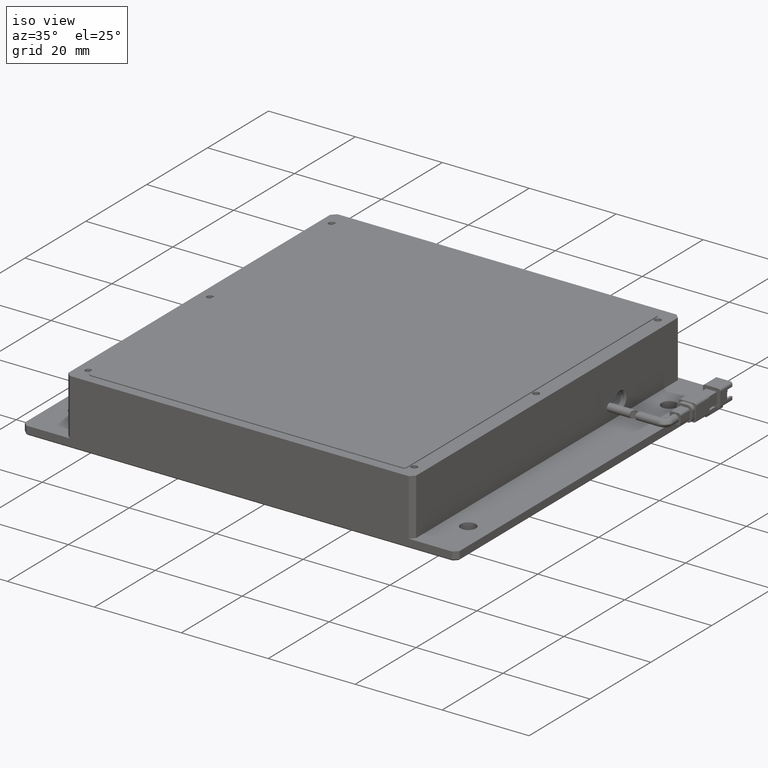
[diagram: clean part render]
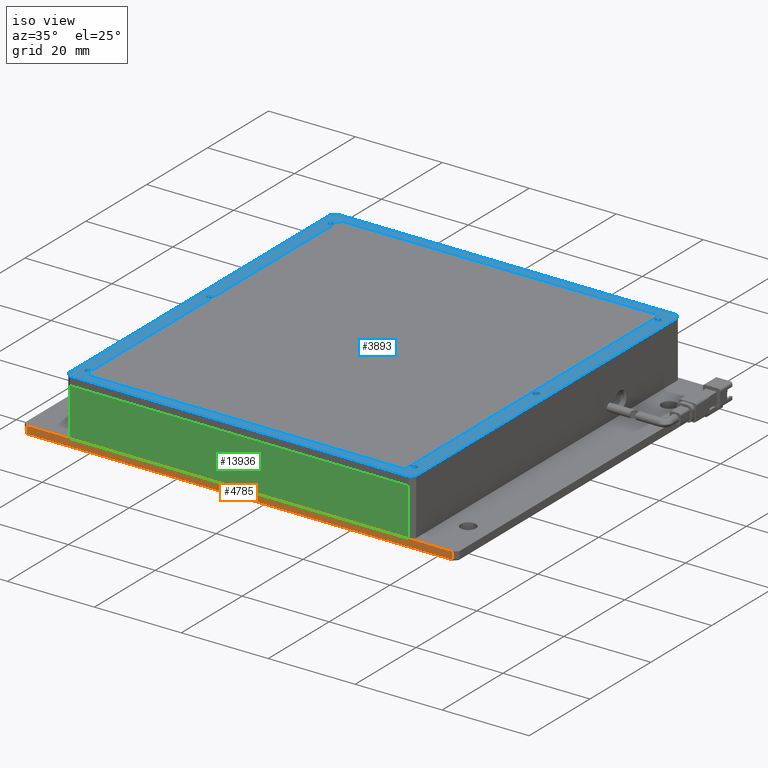
[diagram: same view with three faces highlighted in distinct colors, each labeled with its STEP entity id]
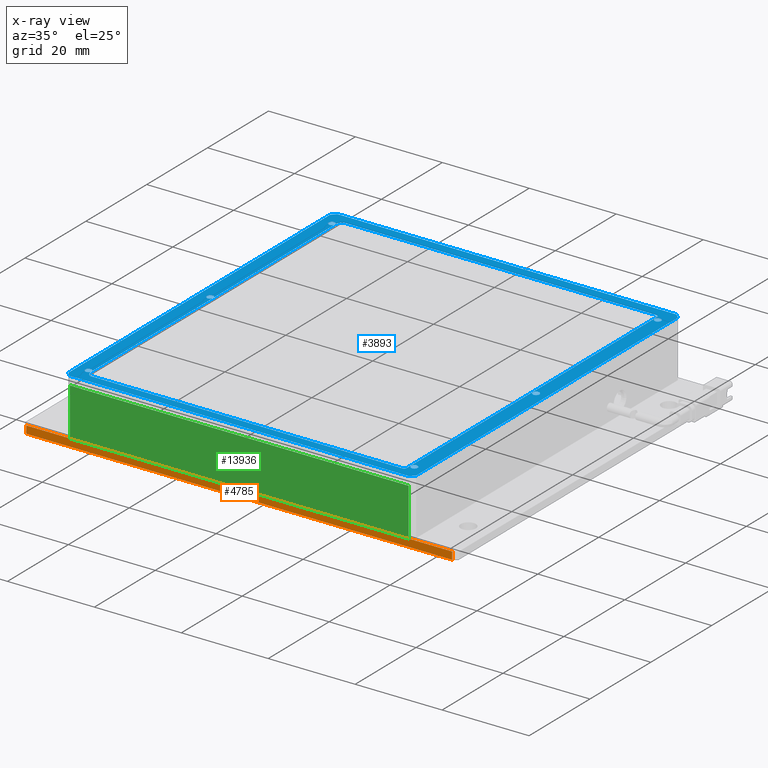
[diagram: x-ray of the same camera — body ghosted, the three highlighted faces saturated]
A machine part, iso view with three faces highlighted in distinct colors.
The next image is the same camera in x-ray (body ghosted, the three faces saturated) — at least one of them is partly hidden behind the body in this view.
Their STEP definitions:

[orange] entity #4785 — the highlighted planar face has unit normal (0, 1, 0).
#422 = ORIENTED_EDGE ( 'NONE', *, *, #15593, .T. ) ;
#1597 = CARTESIAN_POINT ( 'NONE',  ( 66.05231004200071300, -48.20007636502478500, -4.547577592273199800E-012 ) ) ;
#1853 = DIRECTION ( 'NONE',  ( -1.000000000000000000, -0.0000000000000000000, 0.0000000000000000000 ) ) ;
#2190 = VERTEX_POINT ( 'NONE', #4205 ) ;
#2260 = FACE_OUTER_BOUND ( 'NONE', #15422, .T. ) ;
#3369 = DIRECTION ( 'NONE',  ( -0.0000000000000000000, 0.0000000000000000000, -1.000000000000000000 ) ) ;
#3803 = ORIENTED_EDGE ( 'NONE', *, *, #5871, .T. ) ;
#4077 = AXIS2_PLACEMENT_3D ( 'NONE', #12299, #12276, #6858 ) ;
#4205 = CARTESIAN_POINT ( 'NONE',  ( -31.94768995799927300, -48.20007636502478500, -4.547577592273199800E-012 ) ) ;
#4785 = ADVANCED_FACE ( 'NONE', ( #2260 ), #12783, .F. ) ;
#5022 = VERTEX_POINT ( 'NONE', #5571 ) ;
#5571 = CARTESIAN_POINT ( 'NONE',  ( -31.94768995799927300, -48.20007636502478500, -1.700000000004552100 ) ) ;
#5871 = EDGE_CURVE ( 'NONE', #15740, #2190, #15045, .T. ) ;
#6098 = DIRECTION ( 'NONE',  ( -1.000000000000000000, 0.0000000000000000000, -0.0000000000000000000 ) ) ;
#6858 = DIRECTION ( 'NONE',  ( 0.0000000000000000000, -0.0000000000000000000, 1.000000000000000000 ) ) ;
#6939 = EDGE_CURVE ( 'NONE', #13370, #5022, #14749, .T. ) ;
#7468 = VECTOR ( 'NONE', #11331, 1000.000000000000000 ) ;
#7877 = EDGE_CURVE ( 'NONE', #15740, #13370, #11460, .T. ) ;
#7900 = CARTESIAN_POINT ( 'NONE',  ( 66.05231004200074100, -48.20007636502478500, -4.547577592273199800E-012 ) ) ;
#8018 = VECTOR ( 'NONE', #1853, 1000.000000000000000 ) ;
#9106 = CARTESIAN_POINT ( 'NONE',  ( 66.05231004200074100, -48.20007636502478500, -1.700000000004553000 ) ) ;
#10133 = CARTESIAN_POINT ( 'NONE',  ( -32.94768995799925900, -48.20007636502478500, -1.700000000004553000 ) ) ;
#10214 = CARTESIAN_POINT ( 'NONE',  ( -31.94768995799927300, -48.20007636502478500, -4.547577592273199800E-012 ) ) ;
#10536 = ORIENTED_EDGE ( 'NONE', *, *, #7877, .F. ) ;
#10857 = VECTOR ( 'NONE', #3369, 1000.000000000000000 ) ;
#11331 = DIRECTION ( 'NONE',  ( -0.0000000000000000000, 0.0000000000000000000, -1.000000000000000000 ) ) ;
#11446 = VECTOR ( 'NONE', #6098, 1000.000000000000000 ) ;
#11460 = LINE ( 'NONE', #1597, #7468 ) ;
#12276 = DIRECTION ( 'NONE',  ( 0.0000000000000000000, 1.000000000000000000, 0.0000000000000000000 ) ) ;
#12299 = CARTESIAN_POINT ( 'NONE',  ( -32.94768995799925900, -48.20007636502478500, -4.547577592273199800E-012 ) ) ;
#12783 = PLANE ( 'NONE',  #4077 ) ;
#13370 = VERTEX_POINT ( 'NONE', #9106 ) ;
#14434 = LINE ( 'NONE', #10214, #10857 ) ;
#14749 = LINE ( 'NONE', #10133, #8018 ) ;
#15045 = LINE ( 'NONE', #15579, #11446 ) ;
#15422 = EDGE_LOOP ( 'NONE', ( #16084, #10536, #3803, #422 ) ) ;
#15579 = CARTESIAN_POINT ( 'NONE',  ( -32.94768995799925900, -48.20007636502478500, -4.547577592273199800E-012 ) ) ;
#15593 = EDGE_CURVE ( 'NONE', #2190, #5022, #14434, .T. ) ;
#15740 = VERTEX_POINT ( 'NONE', #7900 ) ;
#16084 = ORIENTED_EDGE ( 'NONE', *, *, #6939, .F. ) ;

[blue] entity #3893 — the highlighted planar face has unit normal (0, 0, 1).
#45 = EDGE_LOOP ( 'NONE', ( #17236, #16214, #16157, #15301, #14345, #12419, #5861, #3181 ) ) ;
#67 = LINE ( 'NONE', #1229, #14272 ) ;
#81 = DIRECTION ( 'NONE',  ( 1.000000000000000000, -4.440892098500626200E-016, 0.0000000000000000000 ) ) ;
#211 = VECTOR ( 'NONE', #12949, 1000.000000000000000 ) ;
#221 = VERTEX_POINT ( 'NONE', #6420 ) ;
#334 = EDGE_CURVE ( 'NONE', #3445, #13016, #14268, .T. ) ;
#357 = CARTESIAN_POINT ( 'NONE',  ( -18.76415559455955800, -46.03789340543249900, 12.99999999999545100 ) ) ;
#534 = CARTESIAN_POINT ( 'NONE',  ( -22.94768995799926300, 39.79992363497525800, 12.99999999999545100 ) ) ;
#536 = AXIS2_PLACEMENT_3D ( 'NONE', #8205, #17638, #9549 ) ;
#568 = CARTESIAN_POINT ( 'NONE',  ( 53.80231004200072700, -4.200076365024778500, 12.99999999999545100 ) ) ;
#671 = DIRECTION ( 'NONE',  ( -1.000000000000000000, 0.0000000000000000000, 0.0000000000000000000 ) ) ;
#683 = VERTEX_POINT ( 'NONE', #7286 ) ;
#719 = CARTESIAN_POINT ( 'NONE',  ( 55.30231004200072700, -4.200076365024778500, 12.99999999999545100 ) ) ;
#728 = DIRECTION ( 'NONE',  ( 0.0000000000000000000, 0.0000000000000000000, 1.000000000000000000 ) ) ;
#732 = CIRCLE ( 'NONE', #7002, 0.6518367886739415700 ) ;
#811 = ORIENTED_EDGE ( 'NONE', *, *, #16584, .F. ) ;
#852 = AXIS2_PLACEMENT_3D ( 'NONE', #12826, #4676, #14202 ) ;
#930 = ORIENTED_EDGE ( 'NONE', *, *, #6366, .T. ) ;
#956 = CARTESIAN_POINT ( 'NONE',  ( 53.07545545019090800, 36.74185223224468900, 12.99999999999545100 ) ) ;
#962 = LINE ( 'NONE', #4984, #11548 ) ;
#1071 = AXIS2_PLACEMENT_3D ( 'NONE', #14410, #6291, #15769 ) ;
#1229 = CARTESIAN_POINT ( 'NONE',  ( -19.69768995799924800, 35.79992363497525800, 12.99999999999545100 ) ) ;
#1364 = CIRCLE ( 'NONE', #8231, 0.7500000000000006700 ) ;
#1492 = CIRCLE ( 'NONE', #7912, 0.7500000000000006700 ) ;
#1540 = EDGE_CURVE ( 'NONE', #13016, #3445, #8502, .T. ) ;
#1693 = CIRCLE ( 'NONE', #15797, 0.7500000000000006700 ) ;
#1728 = DIRECTION ( 'NONE',  ( 0.0000000000000000000, 0.0000000000000000000, -1.000000000000000000 ) ) ;
#1801 = EDGE_CURVE ( 'NONE', #10444, #6843, #1492, .T. ) ;
#1852 = CARTESIAN_POINT ( 'NONE',  ( -17.99359334202489800, 35.85280168339946300, 12.99999999999545100 ) ) ;
#1894 = DIRECTION ( 'NONE',  ( -1.000000000000000000, 0.0000000000000000000, 0.0000000000000000000 ) ) ;
#1949 = VECTOR ( 'NONE', #14095, 1000.000000000000000 ) ;
#1996 = EDGE_LOOP ( 'NONE', ( #12754, #14361 ) ) ;
#2056 = VERTEX_POINT ( 'NONE', #2931 ) ;
#2222 = AXIS2_PLACEMENT_3D ( 'NONE', #11768, #3589, #13117 ) ;
#2265 = CARTESIAN_POINT ( 'NONE',  ( 57.05231004200068400, -47.20007636502477800, 12.99999999999545100 ) ) ;
#2271 = DIRECTION ( 'NONE',  ( -1.000000000000000000, -0.0000000000000000000, -0.0000000000000000000 ) ) ;
#2375 = DIRECTION ( 'NONE',  ( 1.000000000000000000, -4.440892098500626200E-016, 0.0000000000000000000 ) ) ;
#2388 = CIRCLE ( 'NONE', #5649, 0.7500000000000006700 ) ;
#2391 = CARTESIAN_POINT ( 'NONE',  ( -19.69768995799924800, 35.79992363497525800, 12.99999999999545100 ) ) ;
#2428 = DIRECTION ( 'NONE',  ( 0.7071067811865479100, 0.7071067811865472400, 0.0000000000000000000 ) ) ;
#2493 = CARTESIAN_POINT ( 'NONE',  ( 57.05231004200074100, 39.79992363497522200, 12.99999999999545100 ) ) ;
#2593 = DIRECTION ( 'NONE',  ( 0.0000000000000000000, 0.0000000000000000000, 1.000000000000000000 ) ) ;
#2704 = CIRCLE ( 'NONE', #15367, 0.7500000000000006700 ) ;
#2751 = EDGE_CURVE ( 'NONE', #15456, #8195, #732, .T. ) ;
#2776 = AXIS2_PLACEMENT_3D ( 'NONE', #15107, #7011, #16481 ) ;
#2825 = VECTOR ( 'NONE', #3835, 1000.000000000000000 ) ;
#2931 = CARTESIAN_POINT ( 'NONE',  ( -18.76415559455955800, 37.37364854602209600, 12.99999999999545100 ) ) ;
#2984 = CARTESIAN_POINT ( 'NONE',  ( -17.72795718517141900, -44.35554108450326500, 12.99999999999545100 ) ) ;
#3005 = CARTESIAN_POINT ( 'NONE',  ( 53.67496845478625300, 36.99773376028026200, 12.99999999999545100 ) ) ;
#3093 = CARTESIAN_POINT ( 'NONE',  ( 55.30231004200074100, 35.79992363497522900, 12.99999999999545100 ) ) ;
#3181 = ORIENTED_EDGE ( 'NONE', *, *, #7914, .T. ) ;
#3210 = ORIENTED_EDGE ( 'NONE', *, *, #5722, .F. ) ;
#3278 = DIRECTION ( 'NONE',  ( -1.000000000000000000, 0.0000000000000000000, 0.0000000000000000000 ) ) ;
#3445 = VERTEX_POINT ( 'NONE', #5413 ) ;
#3583 = CARTESIAN_POINT ( 'NONE',  ( 54.55231004200070500, -44.20007636502477800, 12.99999999999545100 ) ) ;
#3589 = DIRECTION ( 'NONE',  ( 0.0000000000000000000, 0.0000000000000000000, -1.000000000000000000 ) ) ;
#3711 = ORIENTED_EDGE ( 'NONE', *, *, #14537, .T. ) ;
#3778 = DIRECTION ( 'NONE',  ( 1.000000000000000000, 0.0000000000000000000, 0.0000000000000000000 ) ) ;
#3835 = DIRECTION ( 'NONE',  ( 1.301042606982605300E-016, -1.000000000000000000, 0.0000000000000000000 ) ) ;
#3847 = CIRCLE ( 'NONE', #7307, 0.7500000000000006700 ) ;
#3893 = ADVANCED_FACE ( 'NONE', ( #16733, #6332, #9956, #10372, #13104 ), #6082, .T. ) ;
#4030 = ORIENTED_EDGE ( 'NONE', *, *, #10028, .F. ) ;
#4056 = VERTEX_POINT ( 'NONE', #12567 ) ;
#4065 = VECTOR ( 'NONE', #81, 1000.000000000000000 ) ;
#4161 = CIRCLE ( 'NONE', #2776, 0.7500000000000006700 ) ;
#4171 = CARTESIAN_POINT ( 'NONE',  ( -21.94768995799926300, 39.79992363497525800, 12.99999999999545100 ) ) ;
#4347 = DIRECTION ( 'NONE',  ( -0.7071067811865479100, -0.7071067811865472400, 0.0000000000000000000 ) ) ;
#4410 = DIRECTION ( 'NONE',  ( 1.000000000000000000, 0.0000000000000000000, 0.0000000000000000000 ) ) ;
#4504 = CARTESIAN_POINT ( 'NONE',  ( -21.94768995799933400, -48.20007636502474200, 12.99999999999545100 ) ) ;
#4616 = CARTESIAN_POINT ( 'NONE',  ( 57.05231004200074100, 38.79992363497521500, 12.99999999999545100 ) ) ;
#4629 = VERTEX_POINT ( 'NONE', #15477 ) ;
#4632 = CARTESIAN_POINT ( 'NONE',  ( -21.94768995799926300, 39.79992363497525800, 12.99999999999545300 ) ) ;
#4676 = DIRECTION ( 'NONE',  ( 0.0000000000000000000, 0.0000000000000000000, 1.000000000000000000 ) ) ;
#4709 = ORIENTED_EDGE ( 'NONE', *, *, #7501, .T. ) ;
#4752 = EDGE_CURVE ( 'NONE', #8008, #9774, #2704, .T. ) ;
#4795 = CARTESIAN_POINT ( 'NONE',  ( 55.30231004200070500, -44.20007636502477800, 12.99999999999545100 ) ) ;
#4807 = CARTESIAN_POINT ( 'NONE',  ( 57.05231004200074100, 38.79992363497522900, 12.99999999999545300 ) ) ;
#4976 = DIRECTION ( 'NONE',  ( -1.000000000000000000, 0.0000000000000000000, 0.0000000000000000000 ) ) ;
#4984 = CARTESIAN_POINT ( 'NONE',  ( 53.67496845478625300, -45.42049587066020400, 12.99999999999545100 ) ) ;
#5082 = EDGE_CURVE ( 'NONE', #11087, #4056, #8546, .T. ) ;
#5084 = CIRCLE ( 'NONE', #536, 1.975858414804687600 ) ;
#5118 = LINE ( 'NONE', #13653, #17444 ) ;
#5263 = CARTESIAN_POINT ( 'NONE',  ( 53.80231004200074100, 35.79992363497522900, 12.99999999999545100 ) ) ;
#5413 = CARTESIAN_POINT ( 'NONE',  ( -19.69768995799924100, -4.200076365024743900, 12.99999999999545100 ) ) ;
#5555 = ORIENTED_EDGE ( 'NONE', *, *, #7685, .T. ) ;
#5649 = AXIS2_PLACEMENT_3D ( 'NONE', #14920, #6809, #16293 ) ;
#5661 = CARTESIAN_POINT ( 'NONE',  ( 54.55231004200072700, -4.200076365024778500, 12.99999999999545100 ) ) ;
#5722 = EDGE_CURVE ( 'NONE', #221, #9152, #16537, .T. ) ;
#5793 = EDGE_LOOP ( 'NONE', ( #12188, #6693 ) ) ;
#5861 = ORIENTED_EDGE ( 'NONE', *, *, #13260, .T. ) ;
#5962 = CARTESIAN_POINT ( 'NONE',  ( -22.94768995799933400, -47.20007636502474200, 12.99999999999545300 ) ) ;
#6012 = DIRECTION ( 'NONE',  ( 0.0000000000000000000, 0.0000000000000000000, 1.000000000000000000 ) ) ;
#6082 = PLANE ( 'NONE',  #17326 ) ;
#6147 = DIRECTION ( 'NONE',  ( 0.0000000000000000000, 0.0000000000000000000, -1.000000000000000000 ) ) ;
#6173 = EDGE_CURVE ( 'NONE', #6843, #10444, #4161, .T. ) ;
#6188 = ORIENTED_EDGE ( 'NONE', *, *, #8144, .F. ) ;
#6291 = DIRECTION ( 'NONE',  ( 0.0000000000000000000, 0.0000000000000000000, -1.000000000000000000 ) ) ;
#6332 = FACE_BOUND ( 'NONE', #8197, .T. ) ;
#6366 = EDGE_CURVE ( 'NONE', #7288, #13438, #15430, .T. ) ;
#6420 = CARTESIAN_POINT ( 'NONE',  ( -19.70381559997610700, -44.35554108450326500, 12.99999999999545100 ) ) ;
#6451 = DIRECTION ( 'NONE',  ( 0.0000000000000000000, 1.000000000000000000, 0.0000000000000000000 ) ) ;
#6693 = ORIENTED_EDGE ( 'NONE', *, *, #12083, .T. ) ;
#6731 = ORIENTED_EDGE ( 'NONE', *, *, #334, .T. ) ;
#6809 = DIRECTION ( 'NONE',  ( 0.0000000000000000000, 0.0000000000000000000, -1.000000000000000000 ) ) ;
#6843 = VERTEX_POINT ( 'NONE', #3093 ) ;
#6952 = CARTESIAN_POINT ( 'NONE',  ( 57.05231004200069800, -48.20007636502477800, 12.99999999999545100 ) ) ;
#7002 = AXIS2_PLACEMENT_3D ( 'NONE', #956, #728, #671 ) ;
#7011 = DIRECTION ( 'NONE',  ( 0.0000000000000000000, 0.0000000000000000000, -1.000000000000000000 ) ) ;
#7040 = VERTEX_POINT ( 'NONE', #9042 ) ;
#7073 = DIRECTION ( 'NONE',  ( -1.000000000000000000, 0.0000000000000000000, 0.0000000000000000000 ) ) ;
#7087 = ORIENTED_EDGE ( 'NONE', *, *, #14582, .F. ) ;
#7286 = CARTESIAN_POINT ( 'NONE',  ( -22.94768995799931900, -47.20007636502475600, 12.99999999999545100 ) ) ;
#7288 = VERTEX_POINT ( 'NONE', #13947 ) ;
#7307 = AXIS2_PLACEMENT_3D ( 'NONE', #5661, #15163, #7073 ) ;
#7420 = CIRCLE ( 'NONE', #852, 0.6535848440912123100 ) ;
#7483 = DIRECTION ( 'NONE',  ( 4.440892098500626200E-016, 1.000000000000000000, 0.0000000000000000000 ) ) ;
#7501 = EDGE_CURVE ( 'NONE', #4629, #17756, #8118, .T. ) ;
#7565 = EDGE_CURVE ( 'NONE', #8195, #2056, #9580, .T. ) ;
#7601 = ORIENTED_EDGE ( 'NONE', *, *, #13981, .F. ) ;
#7628 = ORIENTED_EDGE ( 'NONE', *, *, #11922, .F. ) ;
#7685 = EDGE_CURVE ( 'NONE', #17756, #9478, #2388, .T. ) ;
#7740 = ORIENTED_EDGE ( 'NONE', *, *, #1540, .T. ) ;
#7912 = AXIS2_PLACEMENT_3D ( 'NONE', #15954, #15893, #15712 ) ;
#7914 = EDGE_CURVE ( 'NONE', #683, #9657, #16538, .T. ) ;
#8000 = EDGE_CURVE ( 'NONE', #16652, #10304, #14419, .T. ) ;
#8008 = VERTEX_POINT ( 'NONE', #14348 ) ;
#8118 = CIRCLE ( 'NONE', #2222, 0.7500000000000006700 ) ;
#8144 = EDGE_CURVE ( 'NONE', #3445, #9478, #10156, .T. ) ;
#8193 = ORIENTED_EDGE ( 'NONE', *, *, #1801, .T. ) ;
#8195 = VERTEX_POINT ( 'NONE', #16348 ) ;
#8197 = EDGE_LOOP ( 'NONE', ( #8193, #8968 ) ) ;
#8205 = CARTESIAN_POINT ( 'NONE',  ( -17.72795718517141900, -44.35554108450326500, 12.99999999999545100 ) ) ;
#8221 = CARTESIAN_POINT ( 'NONE',  ( -19.69768995799923800, -44.20007636502474200, 12.99999999999545100 ) ) ;
#8231 = AXIS2_PLACEMENT_3D ( 'NONE', #10036, #1728, #11401 ) ;
#8408 = CARTESIAN_POINT ( 'NONE',  ( -20.44768995799927700, -4.200076365024743900, 12.99999999999545100 ) ) ;
#8452 = EDGE_CURVE ( 'NONE', #9774, #8008, #1693, .T. ) ;
#8502 = CIRCLE ( 'NONE', #17622, 0.7500000000000006700 ) ;
#8546 = LINE ( 'NONE', #4632, #11702 ) ;
#8575 = VERTEX_POINT ( 'NONE', #2265 ) ;
#8595 = ORIENTED_EDGE ( 'NONE', *, *, #2751, .F. ) ;
#8736 = CARTESIAN_POINT ( 'NONE',  ( 56.05231004200073400, 39.79992363497522200, 12.99999999999545100 ) ) ;
#8754 = DIRECTION ( 'NONE',  ( 0.0000000000000000000, 0.0000000000000000000, -1.000000000000000000 ) ) ;
#8816 = CARTESIAN_POINT ( 'NONE',  ( 57.05231004200072700, 39.79992363497522200, 12.99999999999545100 ) ) ;
#8866 = DIRECTION ( 'NONE',  ( -4.440892098500626200E-016, -1.000000000000000000, -0.0000000000000000000 ) ) ;
#8968 = ORIENTED_EDGE ( 'NONE', *, *, #6173, .T. ) ;
#9042 = CARTESIAN_POINT ( 'NONE',  ( 53.67496845478625300, -45.42049587066020400, 12.99999999999545100 ) ) ;
#9049 = VECTOR ( 'NONE', #3778, 1000.000000000000000 ) ;
#9152 = VERTEX_POINT ( 'NONE', #357 ) ;
#9233 = EDGE_LOOP ( 'NONE', ( #17151, #3711, #930, #7087, #15787, #13222, #8595, #7601, #811, #7628, #3210, #4030, #4709, #5555, #6188, #6731, #7740 ) ) ;
#9238 = EDGE_CURVE ( 'NONE', #12315, #13369, #11159, .T. ) ;
#9337 = CARTESIAN_POINT ( 'NONE',  ( -18.76415559455955800, -46.03789340543249900, 12.99999999999545100 ) ) ;
#9478 = VERTEX_POINT ( 'NONE', #8221 ) ;
#9549 = DIRECTION ( 'NONE',  ( 1.000000000000000000, 0.0000000000000000000, 0.0000000000000000000 ) ) ;
#9580 = LINE ( 'NONE', #11878, #13125 ) ;
#9584 = EDGE_CURVE ( 'NONE', #9657, #12740, #14509, .T. ) ;
#9657 = VERTEX_POINT ( 'NONE', #4504 ) ;
#9700 = EDGE_CURVE ( 'NONE', #2056, #14403, #16610, .T. ) ;
#9774 = VERTEX_POINT ( 'NONE', #4795 ) ;
#9920 = CARTESIAN_POINT ( 'NONE',  ( -20.44768995799927700, -4.200076365024743900, 12.99999999999545100 ) ) ;
#9956 = FACE_BOUND ( 'NONE', #1996, .T. ) ;
#10028 = EDGE_CURVE ( 'NONE', #4629, #221, #5084, .T. ) ;
#10036 = CARTESIAN_POINT ( 'NONE',  ( -20.44768995799924800, 35.79992363497525800, 12.99999999999545100 ) ) ;
#10082 = DIRECTION ( 'NONE',  ( 0.0000000000000000000, 0.0000000000000000000, -1.000000000000000000 ) ) ;
#10156 = LINE ( 'NONE', #2391, #2825 ) ;
#10202 = VECTOR ( 'NONE', #2428, 1000.000000000000000 ) ;
#10304 = VERTEX_POINT ( 'NONE', #8736 ) ;
#10372 = FACE_OUTER_BOUND ( 'NONE', #45, .T. ) ;
#10417 = CARTESIAN_POINT ( 'NONE',  ( -19.69768995799924800, 35.79992363497520800, 12.99999999999545100 ) ) ;
#10444 = VERTEX_POINT ( 'NONE', #5263 ) ;
#10683 = CIRCLE ( 'NONE', #16363, 1.704916820428607800 ) ;
#10992 = DIRECTION ( 'NONE',  ( -1.000000000000000000, 4.440892098500626200E-016, -0.0000000000000000000 ) ) ;
#11087 = VERTEX_POINT ( 'NONE', #4171 ) ;
#11159 = CIRCLE ( 'NONE', #1071, 0.7500000000000006700 ) ;
#11401 = DIRECTION ( 'NONE',  ( -1.000000000000000000, 0.0000000000000000000, 0.0000000000000000000 ) ) ;
#11454 = VECTOR ( 'NONE', #8866, 1000.000000000000000 ) ;
#11508 = DIRECTION ( 'NONE',  ( 0.0000000000000000000, 0.0000000000000000000, 1.000000000000000000 ) ) ;
#11548 = VECTOR ( 'NONE', #6451, 1000.000000000000000 ) ;
#11621 = CARTESIAN_POINT ( 'NONE',  ( -21.19768995799929100, -44.20007636502474200, 12.99999999999545100 ) ) ;
#11637 = CARTESIAN_POINT ( 'NONE',  ( 53.23584440544043900, -46.03789340543249900, 12.99999999999545100 ) ) ;
#11641 = AXIS2_PLACEMENT_3D ( 'NONE', #14277, #6147, #15631 ) ;
#11702 = VECTOR ( 'NONE', #4347, 1000.000000000000000 ) ;
#11768 = CARTESIAN_POINT ( 'NONE',  ( -20.44768995799928700, -44.20007636502474200, 12.99999999999545100 ) ) ;
#11857 = LINE ( 'NONE', #534, #11454 ) ;
#11878 = CARTESIAN_POINT ( 'NONE',  ( -18.76415559455955800, 37.37364854602209600, 12.99999999999545100 ) ) ;
#11922 = EDGE_CURVE ( 'NONE', #9152, #15603, #13027, .T. ) ;
#12079 = AXIS2_PLACEMENT_3D ( 'NONE', #2984, #12563, #4410 ) ;
#12083 = EDGE_CURVE ( 'NONE', #13369, #12315, #3847, .T. ) ;
#12188 = ORIENTED_EDGE ( 'NONE', *, *, #9238, .T. ) ;
#12242 = DIRECTION ( 'NONE',  ( 1.301042606982605300E-016, -1.000000000000000000, 0.0000000000000000000 ) ) ;
#12315 = VERTEX_POINT ( 'NONE', #568 ) ;
#12419 = ORIENTED_EDGE ( 'NONE', *, *, #5082, .T. ) ;
#12479 = EDGE_CURVE ( 'NONE', #13975, #3445, #67, .T. ) ;
#12507 = EDGE_CURVE ( 'NONE', #10304, #11087, #5118, .T. ) ;
#12563 = DIRECTION ( 'NONE',  ( 0.0000000000000000000, 0.0000000000000000000, 1.000000000000000000 ) ) ;
#12567 = CARTESIAN_POINT ( 'NONE',  ( -22.94768995799926300, 38.79992363497525800, 12.99999999999545100 ) ) ;
#12740 = VERTEX_POINT ( 'NONE', #16808 ) ;
#12754 = ORIENTED_EDGE ( 'NONE', *, *, #4752, .T. ) ;
#12826 = CARTESIAN_POINT ( 'NONE',  ( 53.02138361069504000, -45.42049587066020400, 12.99999999999545100 ) ) ;
#12859 = LINE ( 'NONE', #8816, #15633 ) ;
#12885 = DIRECTION ( 'NONE',  ( -1.000000000000000000, 0.0000000000000000000, 0.0000000000000000000 ) ) ;
#12924 = EDGE_CURVE ( 'NONE', #12740, #8575, #13784, .T. ) ;
#12949 = DIRECTION ( 'NONE',  ( -0.7071067811865472400, 0.7071067811865479100, 0.0000000000000000000 ) ) ;
#12961 = DIRECTION ( 'NONE',  ( 0.0000000000000000000, 0.0000000000000000000, -1.000000000000000000 ) ) ;
#13008 = CARTESIAN_POINT ( 'NONE',  ( 54.55231004200070500, -44.20007636502477800, 12.99999999999545100 ) ) ;
#13016 = VERTEX_POINT ( 'NONE', #14967 ) ;
#13027 = LINE ( 'NONE', #9337, #9049 ) ;
#13104 = FACE_BOUND ( 'NONE', #5793, .T. ) ;
#13111 = DIRECTION ( 'NONE',  ( 0.0000000000000000000, 0.0000000000000000000, -1.000000000000000000 ) ) ;
#13117 = DIRECTION ( 'NONE',  ( -1.000000000000000000, 0.0000000000000000000, 0.0000000000000000000 ) ) ;
#13125 = VECTOR ( 'NONE', #2271, 1000.000000000000000 ) ;
#13222 = ORIENTED_EDGE ( 'NONE', *, *, #7565, .F. ) ;
#13260 = EDGE_CURVE ( 'NONE', #4056, #683, #11857, .T. ) ;
#13369 = VERTEX_POINT ( 'NONE', #719 ) ;
#13438 = VERTEX_POINT ( 'NONE', #16010 ) ;
#13653 = CARTESIAN_POINT ( 'NONE',  ( 57.05231004200074100, 39.79992363497522200, 12.99999999999545100 ) ) ;
#13784 = LINE ( 'NONE', #16089, #10202 ) ;
#13932 = AXIS2_PLACEMENT_3D ( 'NONE', #8408, #8754, #1894 ) ;
#13947 = CARTESIAN_POINT ( 'NONE',  ( -21.19768995799924800, 35.79992363497525800, 12.99999999999545100 ) ) ;
#13975 = VERTEX_POINT ( 'NONE', #10417 ) ;
#13981 = EDGE_CURVE ( 'NONE', #7040, #15456, #962, .T. ) ;
#14095 = DIRECTION ( 'NONE',  ( 0.7071067811865472400, -0.7071067811865479100, -0.0000000000000000000 ) ) ;
#14137 = CARTESIAN_POINT ( 'NONE',  ( -17.99359334202489800, 35.85280168339946300, 12.99999999999545100 ) ) ;
#14202 = DIRECTION ( 'NONE',  ( -1.000000000000000000, 0.0000000000000000000, 0.0000000000000000000 ) ) ;
#14268 = CIRCLE ( 'NONE', #13932, 0.7500000000000006700 ) ;
#14272 = VECTOR ( 'NONE', #12242, 1000.000000000000000 ) ;
#14277 = CARTESIAN_POINT ( 'NONE',  ( -20.44768995799924800, 35.79992363497525800, 12.99999999999545100 ) ) ;
#14345 = ORIENTED_EDGE ( 'NONE', *, *, #12507, .T. ) ;
#14348 = CARTESIAN_POINT ( 'NONE',  ( 53.80231004200070500, -44.20007636502477800, 12.99999999999545100 ) ) ;
#14361 = ORIENTED_EDGE ( 'NONE', *, *, #8452, .T. ) ;
#14403 = VERTEX_POINT ( 'NONE', #16437 ) ;
#14410 = CARTESIAN_POINT ( 'NONE',  ( 54.55231004200072700, -4.200076365024778500, 12.99999999999545100 ) ) ;
#14419 = LINE ( 'NONE', #4807, #211 ) ;
#14509 = LINE ( 'NONE', #6952, #4065 ) ;
#14537 = EDGE_CURVE ( 'NONE', #13975, #7288, #1364, .T. ) ;
#14582 = EDGE_CURVE ( 'NONE', #14403, #13438, #10683, .T. ) ;
#14920 = CARTESIAN_POINT ( 'NONE',  ( -20.44768995799928700, -44.20007636502474200, 12.99999999999545100 ) ) ;
#14967 = CARTESIAN_POINT ( 'NONE',  ( -21.19768995799927700, -4.200076365024743900, 12.99999999999545100 ) ) ;
#15107 = CARTESIAN_POINT ( 'NONE',  ( 54.55231004200074100, 35.79992363497522900, 12.99999999999545100 ) ) ;
#15127 = AXIS2_PLACEMENT_3D ( 'NONE', #14137, #6012, #15503 ) ;
#15163 = DIRECTION ( 'NONE',  ( 0.0000000000000000000, 0.0000000000000000000, -1.000000000000000000 ) ) ;
#15301 = ORIENTED_EDGE ( 'NONE', *, *, #8000, .T. ) ;
#15367 = AXIS2_PLACEMENT_3D ( 'NONE', #13008, #12961, #12885 ) ;
#15430 = CIRCLE ( 'NONE', #11641, 0.7500000000000006700 ) ;
#15456 = VERTEX_POINT ( 'NONE', #3005 ) ;
#15477 = CARTESIAN_POINT ( 'NONE',  ( -19.70257519632305300, -44.28553976030114100, 12.99999999999545100 ) ) ;
#15503 = DIRECTION ( 'NONE',  ( -1.000000000000000000, 0.0000000000000000000, 0.0000000000000000000 ) ) ;
#15603 = VERTEX_POINT ( 'NONE', #11637 ) ;
#15631 = DIRECTION ( 'NONE',  ( -1.000000000000000000, 0.0000000000000000000, 0.0000000000000000000 ) ) ;
#15633 = VECTOR ( 'NONE', #7483, 1000.000000000000000 ) ;
#15712 = DIRECTION ( 'NONE',  ( -1.000000000000000000, 0.0000000000000000000, 0.0000000000000000000 ) ) ;
#15769 = DIRECTION ( 'NONE',  ( -1.000000000000000000, 0.0000000000000000000, 0.0000000000000000000 ) ) ;
#15787 = ORIENTED_EDGE ( 'NONE', *, *, #9700, .F. ) ;
#15797 = AXIS2_PLACEMENT_3D ( 'NONE', #3583, #13111, #4976 ) ;
#15893 = DIRECTION ( 'NONE',  ( 0.0000000000000000000, 0.0000000000000000000, -1.000000000000000000 ) ) ;
#15954 = CARTESIAN_POINT ( 'NONE',  ( 54.55231004200074100, 35.79992363497522900, 12.99999999999545100 ) ) ;
#16010 = CARTESIAN_POINT ( 'NONE',  ( -19.69838603486584100, 35.83222890972854900, 12.99999999999545100 ) ) ;
#16089 = CARTESIAN_POINT ( 'NONE',  ( 56.05231004200068400, -48.20007636502477800, 12.99999999999545300 ) ) ;
#16157 = ORIENTED_EDGE ( 'NONE', *, *, #17169, .T. ) ;
#16173 = DIRECTION ( 'NONE',  ( -1.000000000000000000, 0.0000000000000000000, 0.0000000000000000000 ) ) ;
#16214 = ORIENTED_EDGE ( 'NONE', *, *, #12924, .T. ) ;
#16293 = DIRECTION ( 'NONE',  ( -1.000000000000000000, 0.0000000000000000000, 0.0000000000000000000 ) ) ;
#16348 = CARTESIAN_POINT ( 'NONE',  ( 53.23584440544043900, 37.37364854602209600, 12.99999999999545100 ) ) ;
#16363 = AXIS2_PLACEMENT_3D ( 'NONE', #1852, #11508, #3278 ) ;
#16437 = CARTESIAN_POINT ( 'NONE',  ( -19.69851016245350600, 35.85280168339946300, 12.99999999999545100 ) ) ;
#16481 = DIRECTION ( 'NONE',  ( -1.000000000000000000, 0.0000000000000000000, 0.0000000000000000000 ) ) ;
#16537 = CIRCLE ( 'NONE', #12079, 1.975858414804687600 ) ;
#16538 = LINE ( 'NONE', #5962, #1949 ) ;
#16584 = EDGE_CURVE ( 'NONE', #15603, #7040, #7420, .T. ) ;
#16610 = CIRCLE ( 'NONE', #15127, 1.704916820428607800 ) ;
#16652 = VERTEX_POINT ( 'NONE', #4616 ) ;
#16733 = FACE_BOUND ( 'NONE', #9233, .T. ) ;
#16808 = CARTESIAN_POINT ( 'NONE',  ( 56.05231004200067000, -48.20007636502477800, 12.99999999999545100 ) ) ;
#17151 = ORIENTED_EDGE ( 'NONE', *, *, #12479, .F. ) ;
#17169 = EDGE_CURVE ( 'NONE', #8575, #16652, #12859, .T. ) ;
#17236 = ORIENTED_EDGE ( 'NONE', *, *, #9584, .T. ) ;
#17326 = AXIS2_PLACEMENT_3D ( 'NONE', #2493, #2593, #2375 ) ;
#17444 = VECTOR ( 'NONE', #10992, 1000.000000000000000 ) ;
#17622 = AXIS2_PLACEMENT_3D ( 'NONE', #9920, #10082, #16173 ) ;
#17638 = DIRECTION ( 'NONE',  ( 0.0000000000000000000, 0.0000000000000000000, 1.000000000000000000 ) ) ;
#17756 = VERTEX_POINT ( 'NONE', #11621 ) ;

[green] entity #13936 — the highlighted planar face has unit normal (0, 1, 0).
#60 = CARTESIAN_POINT ( 'NONE',  ( -21.94768995799924800, -48.20007636502477800, 10.99999999999545100 ) ) ;
#338 = FACE_OUTER_BOUND ( 'NONE', #10660, .T. ) ;
#448 = VERTEX_POINT ( 'NONE', #789 ) ;
#725 = ORIENTED_EDGE ( 'NONE', *, *, #7816, .F. ) ;
#789 = CARTESIAN_POINT ( 'NONE',  ( 56.05231004200073400, -48.20007636502477800, -4.550179677487165000E-012 ) ) ;
#1882 = DIRECTION ( 'NONE',  ( -1.000000000000000000, -0.0000000000000000000, 0.0000000000000000000 ) ) ;
#2108 = LINE ( 'NONE', #2831, #12225 ) ;
#2677 = ORIENTED_EDGE ( 'NONE', *, *, #16473, .F. ) ;
#2831 = CARTESIAN_POINT ( 'NONE',  ( 56.05231004200073400, -48.20007636502477800, 10.99999999999545100 ) ) ;
#3513 = DIRECTION ( 'NONE',  ( 0.0000000000000000000, 1.000000000000000000, 0.0000000000000000000 ) ) ;
#4723 = CARTESIAN_POINT ( 'NONE',  ( -22.94768995799924800, -48.20007636502477800, -4.547577592273199800E-012 ) ) ;
#4777 = CARTESIAN_POINT ( 'NONE',  ( -22.94768995799924800, -48.20007636502477800, 10.99999999999545100 ) ) ;
#4860 = PLANE ( 'NONE',  #11040 ) ;
#4969 = VECTOR ( 'NONE', #14310, 1000.000000000000000 ) ;
#5331 = EDGE_CURVE ( 'NONE', #448, #8791, #9810, .T. ) ;
#6180 = VECTOR ( 'NONE', #1882, 1000.000000000000000 ) ;
#7050 = DIRECTION ( 'NONE',  ( 0.0000000000000000000, -0.0000000000000000000, 1.000000000000000000 ) ) ;
#7491 = VERTEX_POINT ( 'NONE', #11712 ) ;
#7816 = EDGE_CURVE ( 'NONE', #8791, #7491, #15695, .T. ) ;
#8516 = VECTOR ( 'NONE', #7050, 1000.000000000000000 ) ;
#8631 = LINE ( 'NONE', #4777, #4969 ) ;
#8791 = VERTEX_POINT ( 'NONE', #11242 ) ;
#8962 = EDGE_CURVE ( 'NONE', #13058, #7491, #8631, .T. ) ;
#9810 = LINE ( 'NONE', #4723, #6180 ) ;
#10308 = ORIENTED_EDGE ( 'NONE', *, *, #8962, .T. ) ;
#10660 = EDGE_LOOP ( 'NONE', ( #725, #14882, #2677, #10308 ) ) ;
#11040 = AXIS2_PLACEMENT_3D ( 'NONE', #11716, #3513, #13065 ) ;
#11242 = CARTESIAN_POINT ( 'NONE',  ( -21.94768995799925200, -48.20007636502477800, -4.548228113576691100E-012 ) ) ;
#11712 = CARTESIAN_POINT ( 'NONE',  ( -21.94768995799925900, -48.20007636502477800, 10.99999999999545100 ) ) ;
#11716 = CARTESIAN_POINT ( 'NONE',  ( -22.94768995799924800, -48.20007636502477800, 10.99999999999545100 ) ) ;
#12225 = VECTOR ( 'NONE', #13770, 1000.000000000000000 ) ;
#13058 = VERTEX_POINT ( 'NONE', #16327 ) ;
#13065 = DIRECTION ( 'NONE',  ( 0.0000000000000000000, -0.0000000000000000000, 1.000000000000000000 ) ) ;
#13770 = DIRECTION ( 'NONE',  ( -0.0000000000000000000, 0.0000000000000000000, -1.000000000000000000 ) ) ;
#13936 = ADVANCED_FACE ( 'NONE', ( #338 ), #4860, .F. ) ;
#14310 = DIRECTION ( 'NONE',  ( -1.000000000000000000, 0.0000000000000000000, -0.0000000000000000000 ) ) ;
#14882 = ORIENTED_EDGE ( 'NONE', *, *, #5331, .F. ) ;
#15695 = LINE ( 'NONE', #60, #8516 ) ;
#16327 = CARTESIAN_POINT ( 'NONE',  ( 56.05231004200073400, -48.20007636502477800, 10.99999999999545100 ) ) ;
#16473 = EDGE_CURVE ( 'NONE', #13058, #448, #2108, .T. ) ;